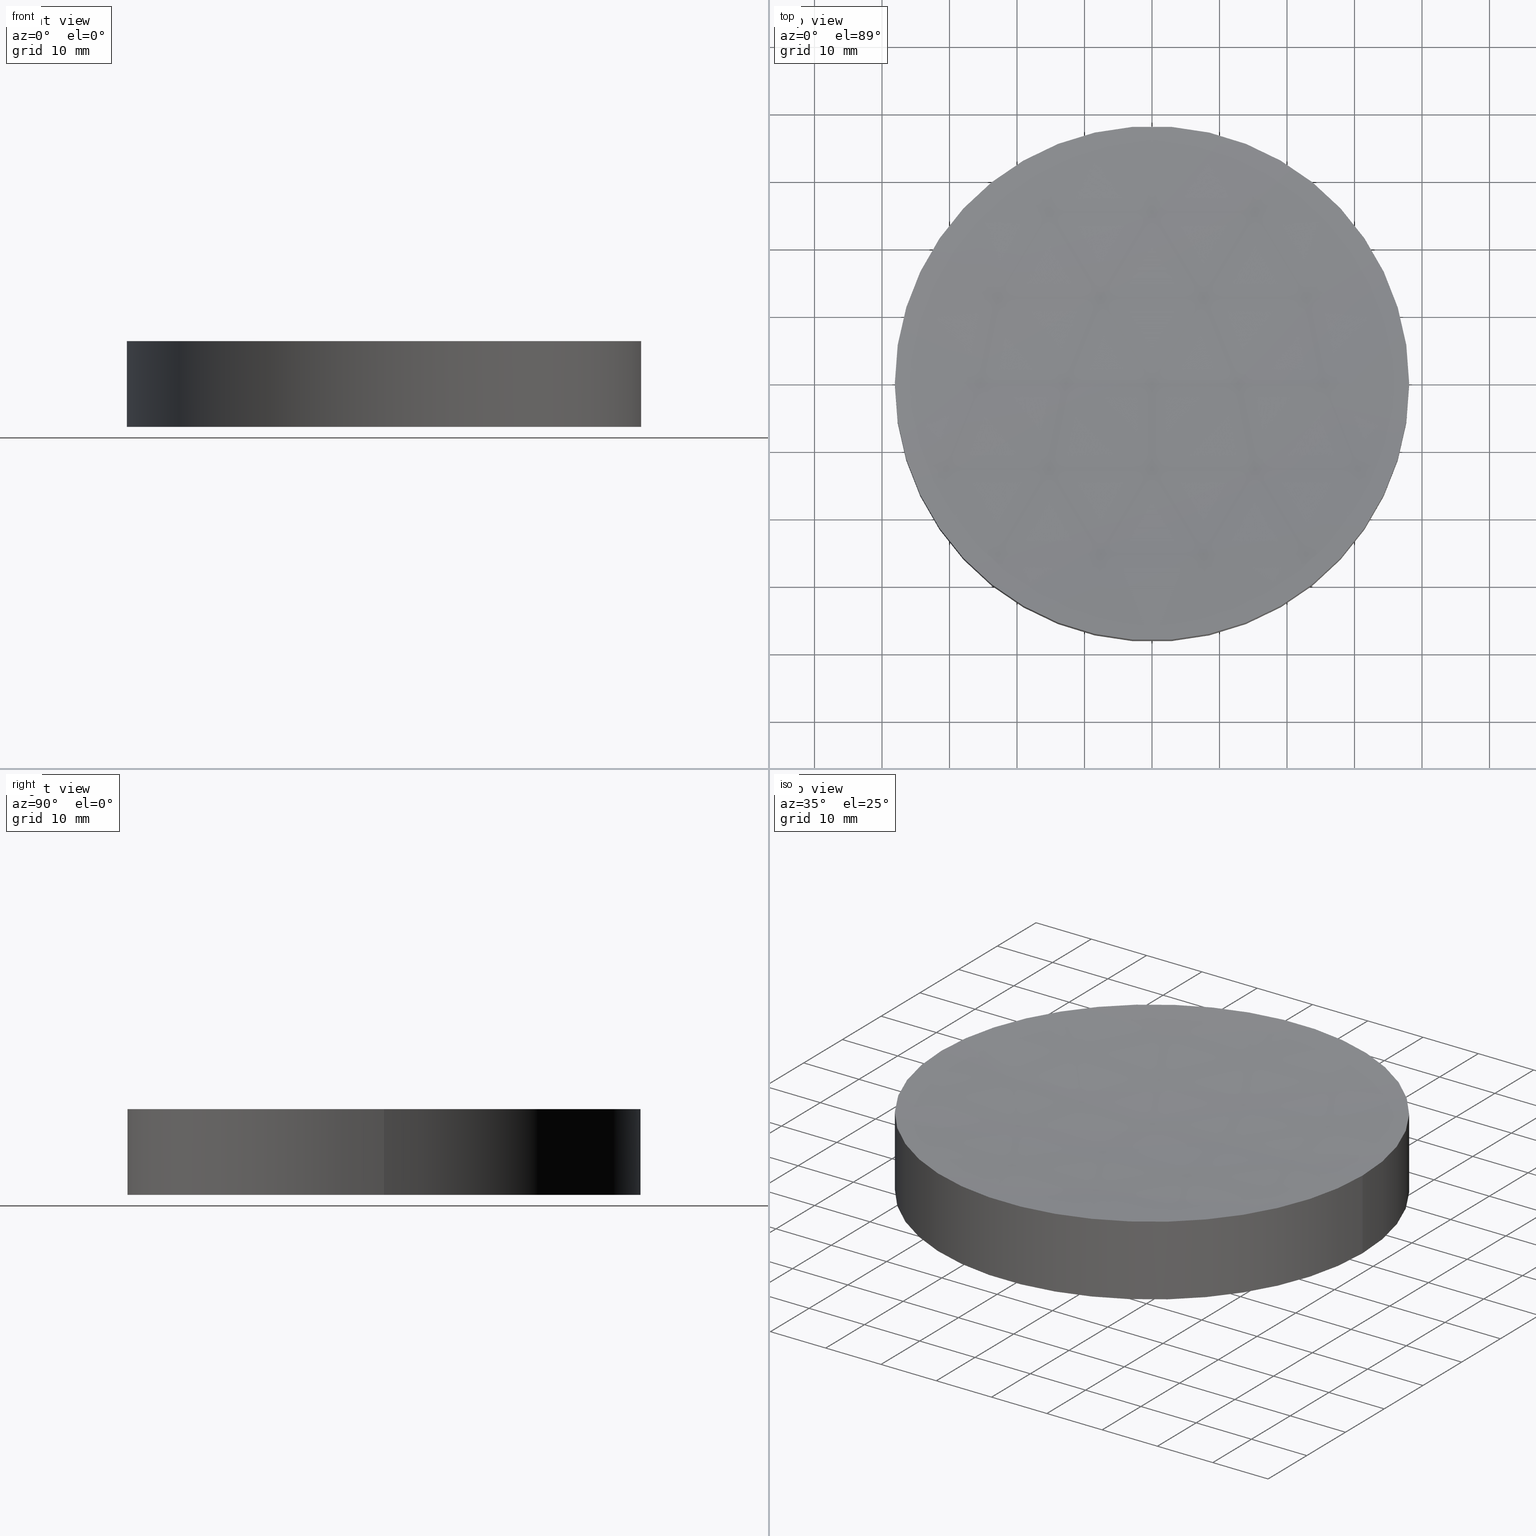
[diagram: canonical four-view strip — front | top / right | iso, engineering-drawing reading convention]
A machine part, canonical four-view strip (front | top / right | iso — engineering-drawing reading convention). The complete STEP part file that produces these views, byte-faithful:
ISO-10303-21;
HEADER;
FILE_DESCRIPTION (( 'STEP AP203' ),
    '1' );
FILE_NAME ('010-1710E_UVFS_PCV_window.STEP',
    '2021-02-26T06:17:11',
    ( '' ),
    ( '' ),
    'SwSTEP 2.0',
    'SolidWorks 2019',
    '' );
FILE_SCHEMA (( 'CONFIG_CONTROL_DESIGN' ));
ENDSEC;

DATA;
#1 = COORDINATED_UNIVERSAL_TIME_OFFSET ( 2, 0, .AHEAD. ) ;
#2 = ORIENTED_EDGE ( 'NONE', *, *, #26, .F. ) ;
#3 = APPROVAL_ROLE ( '' ) ;
#4 = FACE_OUTER_BOUND ( 'NONE', #136, .T. ) ;
#5 = PERSON_AND_ORGANIZATION_ROLE ( 'creator' ) ;
#6 = APPROVAL_STATUS ( 'not_yet_approved' ) ;
#7 = DATE_AND_TIME ( #129, #201 ) ;
#8 = LOCAL_TIME ( 8, 17, 11.00000000000000000, #84 ) ;
#9 = PRODUCT_DEFINITION_SHAPE ( 'NONE', 'NONE',  #137 ) ;
#10 = DIRECTION ( 'NONE',  ( 0.000000000000000000, 0.000000000000000000, 1.000000000000000000 ) ) ;
#11 = DIRECTION ( 'NONE',  ( -0.000000000000000000, -0.000000000000000000, -1.000000000000000000 ) ) ;
#12 = EDGE_CURVE ( 'NONE', #94, #80, #49, .T. ) ;
#13 = CARTESIAN_POINT ( 'NONE',  ( 0.000000000000000000, 0.000000000000000000, 0.000000000000000000 ) ) ;
#14 = EDGE_LOOP ( 'NONE', ( #173, #186, #81 ) ) ;
#15 = AXIS2_PLACEMENT_3D ( 'NONE', #170, #47, #188 ) ;
#16 = ADVANCED_FACE ( 'NONE', ( #4 ), #36, .F. ) ;
#17 = CIRCLE ( 'NONE', #112, 399.9999999999999432 ) ;
#18 = CARTESIAN_POINT ( 'NONE',  ( 4.857225732735059864E-14, 0.000000000000000000, 410.8813531545644651 ) ) ;
#19 = LOCAL_TIME ( 8, 17, 11.00000000000000000, #38 ) ;
#20 = PERSON_AND_ORGANIZATION ( #24, #171 ) ;
#21 = AXIS2_PLACEMENT_3D ( 'NONE', #37, #158, #126 ) ;
#22 = PERSON_AND_ORGANIZATION_ROLE ( 'design_owner' ) ;
#23 = DIRECTION ( 'NONE',  ( -0.000000000000000000, -0.000000000000000000, -1.000000000000000000 ) ) ;
#24 = PERSON ( 'UNSPECIFIED', 'UNSPECIFIED', 'UNSPECIFIED', ('UNSPECIFIED'), ('UNSPECIFIED'), ('UNSPECIFIED') ) ;
#25 = DIRECTION ( 'NONE',  ( 0.000000000000000000, -1.000000000000000000, -0.000000000000000000 ) ) ;
#26 = EDGE_CURVE ( 'NONE', #94, #45, #118, .T. ) ;
#27 = DIRECTION ( 'NONE',  ( 1.000000000000000000, 0.000000000000000000, 0.000000000000000000 ) ) ;
#28 = CC_DESIGN_APPROVAL ( #107, ( #137 ) ) ;
#29 = PERSON_AND_ORGANIZATION ( #24, #171 ) ;
#30 = CC_DESIGN_APPROVAL ( #66, ( #165 ) ) ;
#31 = ORIENTED_EDGE ( 'NONE', *, *, #26, .T. ) ;
#32 = ORIENTED_EDGE ( 'NONE', *, *, #46, .T. ) ;
#33 = EDGE_CURVE ( 'NONE', #45, #175, #59, .T. ) ;
#34 =( NAMED_UNIT ( * ) PLANE_ANGLE_UNIT ( ) SI_UNIT ( $, .RADIAN. ) );
#35 = VECTOR ( 'NONE', #164, 1000.000000000000000 ) ;
#36 = PLANE ( 'NONE',  #21 ) ;
#37 = CARTESIAN_POINT ( 'NONE',  ( 0.000000000000000000, 0.000000000000000000, 0.000000000000000000 ) ) ;
#38 = COORDINATED_UNIVERSAL_TIME_OFFSET ( 2, 0, .AHEAD. ) ;
#39 = CALENDAR_DATE ( 2021, 26, 2 ) ;
#40 = CARTESIAN_POINT ( 'NONE',  ( 7.306519331029765352E-14, 0.000000000000000000, 10.88135315456445440 ) ) ;
#41 = SPHERICAL_SURFACE ( 'NONE', #157, 400.0000000000000000 ) ;
#42 = CARTESIAN_POINT ( 'NONE',  ( -38.10000000000000142, 0.000000000000000000, 12.69999999999999929 ) ) ;
#43 = PERSON_AND_ORGANIZATION ( #24, #171 ) ;
#44 = CIRCLE ( 'NONE', #68, 38.10000000000000142 ) ;
#45 = VERTEX_POINT ( 'NONE', #90 ) ;
#46 = EDGE_CURVE ( 'NONE', #80, #175, #133, .T. ) ;
#47 = DIRECTION ( 'NONE',  ( 1.224646799147353207E-16, -1.000000000000000000, 0.000000000000000000 ) ) ;
#48 = DIRECTION ( 'NONE',  ( 1.000000000000000000, 0.000000000000000000, 0.000000000000000000 ) ) ;
#49 = CIRCLE ( 'NONE', #193, 38.10000000000025722 ) ;
#50 = EDGE_LOOP ( 'NONE', ( #2, #138, #32, #169 ) ) ;
#51 = ADVANCED_FACE ( 'NONE', ( #57 ), #74, .T. ) ;
#52 = APPROVAL_ROLE ( '' ) ;
#53 = APPROVAL_STATUS ( 'not_yet_approved' ) ;
#54 = CARTESIAN_POINT ( 'NONE',  ( 4.857225732735059864E-14, 0.000000000000000000, 410.8813531545644651 ) ) ;
#55 = PERSON_AND_ORGANIZATION_ROLE ( 'creator' ) ;
#56 = DIRECTION ( 'NONE',  ( -1.000000000000000000, 0.000000000000000000, 0.000000000000000000 ) ) ;
#57 = FACE_OUTER_BOUND ( 'NONE', #77, .T. ) ;
#58 = APPROVAL_PERSON_ORGANIZATION ( #43, #107, #71 ) ;
#59 = CIRCLE ( 'NONE', #149, 38.10000000000000142 ) ;
#60 = CC_DESIGN_PERSON_AND_ORGANIZATION_ASSIGNMENT ( #128, #5, ( #165 ) ) ;
#61 = ORIENTED_EDGE ( 'NONE', *, *, #145, .T. ) ;
#62 = APPROVAL ( #6, 'UNSPECIFIED' ) ;
#63 = CALENDAR_DATE ( 2021, 26, 2 ) ;
#64 = CARTESIAN_POINT ( 'NONE',  ( 4.857225732735059864E-14, 0.000000000000000000, 12.69999999999998863 ) ) ;
#65 = VERTEX_POINT ( 'NONE', #40 ) ;
#66 = APPROVAL ( #53, 'UNSPECIFIED' ) ;
#67 = DATE_AND_TIME ( #159, #8 ) ;
#68 = AXIS2_PLACEMENT_3D ( 'NONE', #132, #10, #130 ) ;
#69 = MECHANICAL_CONTEXT ( 'NONE', #75, 'mechanical' ) ;
#70 = SECURITY_CLASSIFICATION_LEVEL ( 'unclassified' ) ;
#71 = APPROVAL_ROLE ( '' ) ;
#72 = FACE_OUTER_BOUND ( 'NONE', #50, .T. ) ;
#73 = CARTESIAN_POINT ( 'NONE',  ( 4.857225732735059864E-14, 0.000000000000000000, 410.8813531545644651 ) ) ;
#74 = CYLINDRICAL_SURFACE ( 'NONE', #122, 38.10000000000000142 ) ;
#75 = APPLICATION_CONTEXT ( 'configuration controlled 3d designs of mechanical parts and assemblies' ) ;
#76 = CC_DESIGN_DATE_AND_TIME_ASSIGNMENT ( #67, #177, ( #174 ) ) ;
#77 = EDGE_LOOP ( 'NONE', ( #123, #31, #110, #141 ) ) ;
#78 = EDGE_LOOP ( 'NONE', ( #142, #156, #61 ) ) ;
#79 = CLOSED_SHELL ( 'NONE', ( #125, #51, #91, #16, #191 ) ) ;
#80 = VERTEX_POINT ( 'NONE', #196 ) ;
#81 = ORIENTED_EDGE ( 'NONE', *, *, #145, .F. ) ;
#82 = CC_DESIGN_PERSON_AND_ORGANIZATION_ASSIGNMENT ( #197, #55, ( #137 ) ) ;
#83 = PRODUCT_RELATED_PRODUCT_CATEGORY ( 'detail', '', ( #103 ) ) ;
#84 = COORDINATED_UNIVERSAL_TIME_OFFSET ( 2, 0, .AHEAD. ) ;
#85 = CIRCLE ( 'NONE', #97, 38.10000000000025722 ) ;
#86 = APPROVAL_DATE_TIME ( #7, #107 ) ;
#87 = CARTESIAN_POINT ( 'NONE',  ( 38.10000000000030695, 4.665904304751453163E-15, 12.69999999999998863 ) ) ;
#88 = APPROVAL_PERSON_ORGANIZATION ( #29, #66, #3 ) ;
#89 = CARTESIAN_POINT ( 'NONE',  ( 0.000000000000000000, 0.000000000000000000, 12.69999999999999929 ) ) ;
#90 = CARTESIAN_POINT ( 'NONE',  ( 38.10000000000000142, 4.665904304751416087E-15, 0.000000000000000000 ) ) ;
#91 = ADVANCED_FACE ( 'NONE', ( #72 ), #105, .T. ) ;
#92 = PERSON_AND_ORGANIZATION ( #24, #171 ) ;
#93 = ORIENTED_EDGE ( 'NONE', *, *, #184, .F. ) ;
#94 = VERTEX_POINT ( 'NONE', #87 ) ;
#95 =( NAMED_UNIT ( * ) SI_UNIT ( $, .STERADIAN. ) SOLID_ANGLE_UNIT ( ) );
#96 =( LENGTH_UNIT ( ) NAMED_UNIT ( * ) SI_UNIT ( .MILLI., .METRE. ) );
#97 = AXIS2_PLACEMENT_3D ( 'NONE', #163, #23, #180 ) ;
#98 = DIRECTION ( 'NONE',  ( -0.000000000000000000, -0.000000000000000000, -1.000000000000000000 ) ) ;
#99 = CC_DESIGN_DATE_AND_TIME_ASSIGNMENT ( #183, #108, ( #137 ) ) ;
#100 = CC_DESIGN_PERSON_AND_ORGANIZATION_ASSIGNMENT ( #20, #194, ( #174 ) ) ;
#101 = SHAPE_DEFINITION_REPRESENTATION ( #9, #190 ) ;
#102 = APPLICATION_PROTOCOL_DEFINITION ( 'international standard', 'config_control_design', 1994, #168 ) ;
#103 = PRODUCT ( '010-1710E_UVFS_PCV_window', '010-1710E_UVFS_PCV_window', '', ( #69 ) ) ;
#104 = DIRECTION ( 'NONE',  ( 0.000000000000000000, 1.000000000000000000, -0.000000000000000000 ) ) ;
#105 = CYLINDRICAL_SURFACE ( 'NONE', #109, 38.10000000000000142 ) ;
#106 = DIRECTION ( 'NONE',  ( 0.000000000000000000, 0.000000000000000000, 1.000000000000000000 ) ) ;
#107 = APPROVAL ( #179, 'UNSPECIFIED' ) ;
#108 = DATE_TIME_ROLE ( 'creation_date' ) ;
#109 = AXIS2_PLACEMENT_3D ( 'NONE', #89, #11, #56 ) ;
#110 = ORIENTED_EDGE ( 'NONE', *, *, #33, .T. ) ;
#111 = DIRECTION ( 'NONE',  ( 0.000000000000000000, -1.000000000000000000, -0.000000000000000000 ) ) ;
#112 = AXIS2_PLACEMENT_3D ( 'NONE', #73, #104, #198 ) ;
#113 = DIRECTION ( 'NONE',  ( 1.000000000000000000, 0.000000000000000000, 0.000000000000000000 ) ) ;
#114 = DATE_AND_TIME ( #63, #115 ) ;
#115 = LOCAL_TIME ( 8, 17, 11.00000000000000000, #1 ) ;
#116 = FACE_OUTER_BOUND ( 'NONE', #14, .T. ) ;
#117 = CARTESIAN_POINT ( 'NONE',  ( 0.000000000000000000, 0.000000000000000000, 12.69999999999999929 ) ) ;
#118 = LINE ( 'NONE', #182, #35 ) ;
#119 = CC_DESIGN_PERSON_AND_ORGANIZATION_ASSIGNMENT ( #148, #178, ( #165 ) ) ;
#120 = CALENDAR_DATE ( 2021, 26, 2 ) ;
#121 =( GEOMETRIC_REPRESENTATION_CONTEXT ( 3 ) GLOBAL_UNCERTAINTY_ASSIGNED_CONTEXT ( ( #135 ) ) GLOBAL_UNIT_ASSIGNED_CONTEXT ( ( #96, #34, #95 ) ) REPRESENTATION_CONTEXT ( 'NONE', 'WORKASPACE' ) );
#122 = AXIS2_PLACEMENT_3D ( 'NONE', #117, #181, #153 ) ;
#123 = ORIENTED_EDGE ( 'NONE', *, *, #155, .T. ) ;
#124 = FACE_OUTER_BOUND ( 'NONE', #78, .T. ) ;
#125 = ADVANCED_FACE ( 'NONE', ( #116 ), #41, .F. ) ;
#126 = DIRECTION ( 'NONE',  ( 1.000000000000000000, 0.000000000000000000, -0.000000000000000000 ) ) ;
#127 = PERSON_AND_ORGANIZATION ( #24, #171 ) ;
#128 = PERSON_AND_ORGANIZATION ( #24, #171 ) ;
#129 = CALENDAR_DATE ( 2021, 26, 2 ) ;
#130 = DIRECTION ( 'NONE',  ( 1.000000000000000000, 0.000000000000000000, 0.000000000000000000 ) ) ;
#131 = DIRECTION ( 'NONE',  ( 0.000000000000000000, 0.000000000000000000, 1.000000000000000000 ) ) ;
#132 = CARTESIAN_POINT ( 'NONE',  ( 0.000000000000000000, 0.000000000000000000, 0.000000000000000000 ) ) ;
#133 = LINE ( 'NONE', #42, #172 ) ;
#134 = CIRCLE ( 'NONE', #15, 400.0000000000000000 ) ;
#135 = UNCERTAINTY_MEASURE_WITH_UNIT (LENGTH_MEASURE( 1.000000000000000082E-05 ), #96, 'distance_accuracy_value', 'NONE');
#136 = EDGE_LOOP ( 'NONE', ( #93, #189 ) ) ;
#137 = PRODUCT_DEFINITION ( 'UNKNOWN', '', #165, #200 ) ;
#138 = ORIENTED_EDGE ( 'NONE', *, *, #12, .T. ) ;
#139 = LOCAL_TIME ( 8, 17, 11.00000000000000000, #195 ) ;
#140 = CC_DESIGN_APPROVAL ( #62, ( #174 ) ) ;
#141 = ORIENTED_EDGE ( 'NONE', *, *, #46, .F. ) ;
#142 = ORIENTED_EDGE ( 'NONE', *, *, #199, .F. ) ;
#143 = MANIFOLD_SOLID_BREP ( 'Cut-Revolve1', #79 ) ;
#144 = DATE_AND_TIME ( #39, #19 ) ;
#145 = EDGE_CURVE ( 'NONE', #94, #65, #17, .T. ) ;
#146 = DIRECTION ( 'NONE',  ( 1.000000000000000000, 0.000000000000000000, 0.000000000000000000 ) ) ;
#147 = AXIS2_PLACEMENT_3D ( 'NONE', #166, #131, #146 ) ;
#148 = PERSON_AND_ORGANIZATION ( #24, #171 ) ;
#149 = AXIS2_PLACEMENT_3D ( 'NONE', #13, #106, #27 ) ;
#150 = COORDINATED_UNIVERSAL_TIME_OFFSET ( 2, 0, .AHEAD. ) ;
#151 = APPROVAL_PERSON_ORGANIZATION ( #127, #62, #52 ) ;
#152 = CARTESIAN_POINT ( 'NONE',  ( -38.10000000000000142, 0.000000000000000000, 0.000000000000000000 ) ) ;
#153 = DIRECTION ( 'NONE',  ( -1.000000000000000000, 0.000000000000000000, 0.000000000000000000 ) ) ;
#154 = DIRECTION ( 'NONE',  ( -0.000000000000000000, -0.000000000000000000, -1.000000000000000000 ) ) ;
#155 = EDGE_CURVE ( 'NONE', #80, #94, #85, .T. ) ;
#156 = ORIENTED_EDGE ( 'NONE', *, *, #12, .F. ) ;
#157 = AXIS2_PLACEMENT_3D ( 'NONE', #54, #25, #162 ) ;
#158 = DIRECTION ( 'NONE',  ( 0.000000000000000000, 0.000000000000000000, 1.000000000000000000 ) ) ;
#159 = CALENDAR_DATE ( 2021, 26, 2 ) ;
#160 = APPROVAL_DATE_TIME ( #114, #66 ) ;
#161 = APPLICATION_PROTOCOL_DEFINITION ( 'international standard', 'config_control_design', 1994, #75 ) ;
#162 = DIRECTION ( 'NONE',  ( 1.000000000000000000, 0.000000000000000000, 0.000000000000000000 ) ) ;
#163 = CARTESIAN_POINT ( 'NONE',  ( 4.857225732735059864E-14, 0.000000000000000000, 12.69999999999998863 ) ) ;
#164 = DIRECTION ( 'NONE',  ( -0.000000000000000000, -0.000000000000000000, -1.000000000000000000 ) ) ;
#165 = PRODUCT_DEFINITION_FORMATION_WITH_SPECIFIED_SOURCE ( 'ANY', '', #103, .NOT_KNOWN. ) ;
#166 = CARTESIAN_POINT ( 'NONE',  ( 0.000000000000000000, 0.000000000000000000, 0.000000000000000000 ) ) ;
#167 = CC_DESIGN_SECURITY_CLASSIFICATION ( #174, ( #165 ) ) ;
#168 = APPLICATION_CONTEXT ( 'configuration controlled 3d designs of mechanical parts and assemblies' ) ;
#169 = ORIENTED_EDGE ( 'NONE', *, *, #184, .T. ) ;
#170 = CARTESIAN_POINT ( 'NONE',  ( 4.857225732735059864E-14, 0.000000000000000000, 410.8813531545644651 ) ) ;
#171 = ORGANIZATION ( 'UNSPECIFIED', 'UNSPECIFIED', '' ) ;
#172 = VECTOR ( 'NONE', #154, 1000.000000000000000 ) ;
#173 = ORIENTED_EDGE ( 'NONE', *, *, #155, .F. ) ;
#174 = SECURITY_CLASSIFICATION ( '', '', #70 ) ;
#175 = VERTEX_POINT ( 'NONE', #152 ) ;
#176 = CC_DESIGN_PERSON_AND_ORGANIZATION_ASSIGNMENT ( #92, #22, ( #103 ) ) ;
#177 = DATE_TIME_ROLE ( 'classification_date' ) ;
#178 = PERSON_AND_ORGANIZATION_ROLE ( 'design_supplier' ) ;
#179 = APPROVAL_STATUS ( 'not_yet_approved' ) ;
#180 = DIRECTION ( 'NONE',  ( 1.000000000000000000, 0.000000000000000000, 0.000000000000000000 ) ) ;
#181 = DIRECTION ( 'NONE',  ( -0.000000000000000000, -0.000000000000000000, -1.000000000000000000 ) ) ;
#182 = CARTESIAN_POINT ( 'NONE',  ( 38.10000000000000142, 4.665904304751416087E-15, 12.69999999999999929 ) ) ;
#183 = DATE_AND_TIME ( #120, #139 ) ;
#184 = EDGE_CURVE ( 'NONE', #175, #45, #44, .T. ) ;
#185 = AXIS2_PLACEMENT_3D ( 'NONE', #18, #111, #48 ) ;
#186 = ORIENTED_EDGE ( 'NONE', *, *, #199, .T. ) ;
#187 = SPHERICAL_SURFACE ( 'NONE', #185, 400.0000000000000000 ) ;
#188 = DIRECTION ( 'NONE',  ( 1.000000000000000000, 1.224646799147353207E-16, 0.000000000000000000 ) ) ;
#189 = ORIENTED_EDGE ( 'NONE', *, *, #33, .F. ) ;
#190 = ADVANCED_BREP_SHAPE_REPRESENTATION ( '010-1710E_UVFS_PCV_window', ( #143, #147 ), #121 ) ;
#191 = ADVANCED_FACE ( 'NONE', ( #124 ), #187, .F. ) ;
#192 = APPROVAL_DATE_TIME ( #144, #62 ) ;
#193 = AXIS2_PLACEMENT_3D ( 'NONE', #64, #98, #113 ) ;
#194 = PERSON_AND_ORGANIZATION_ROLE ( 'classification_officer' ) ;
#195 = COORDINATED_UNIVERSAL_TIME_OFFSET ( 2, 0, .AHEAD. ) ;
#196 = CARTESIAN_POINT ( 'NONE',  ( -38.10000000000020748, 0.000000000000000000, 12.69999999999998863 ) ) ;
#197 = PERSON_AND_ORGANIZATION ( #24, #171 ) ;
#198 = DIRECTION ( 'NONE',  ( 0.000000000000000000, 0.000000000000000000, 1.000000000000000000 ) ) ;
#199 = EDGE_CURVE ( 'NONE', #80, #65, #134, .T. ) ;
#200 = DESIGN_CONTEXT ( 'detailed design', #168, 'design' ) ;
#201 = LOCAL_TIME ( 8, 17, 11.00000000000000000, #150 ) ;
ENDSEC;
END-ISO-10303-21;
